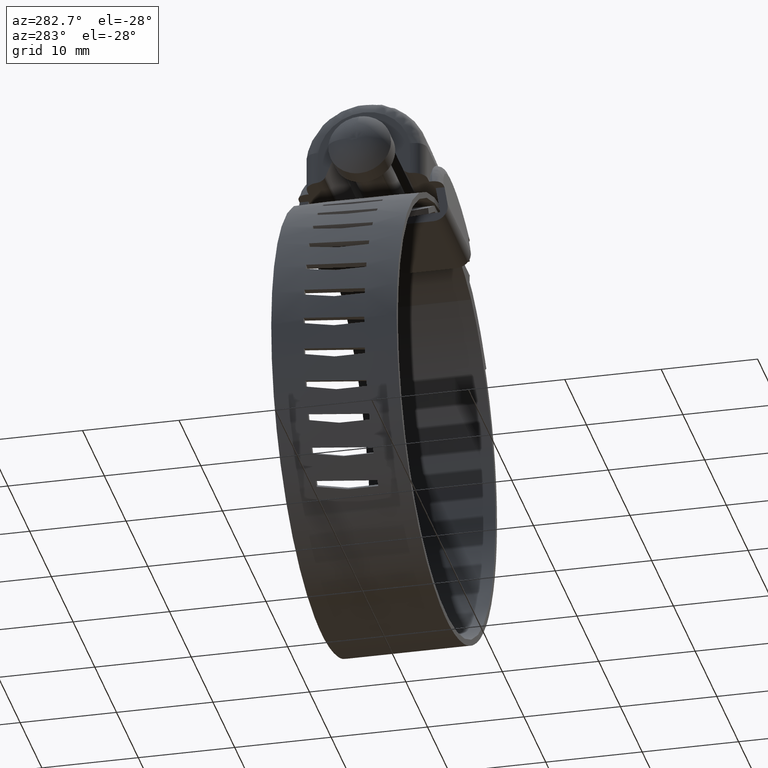
[diagram: clean part render]
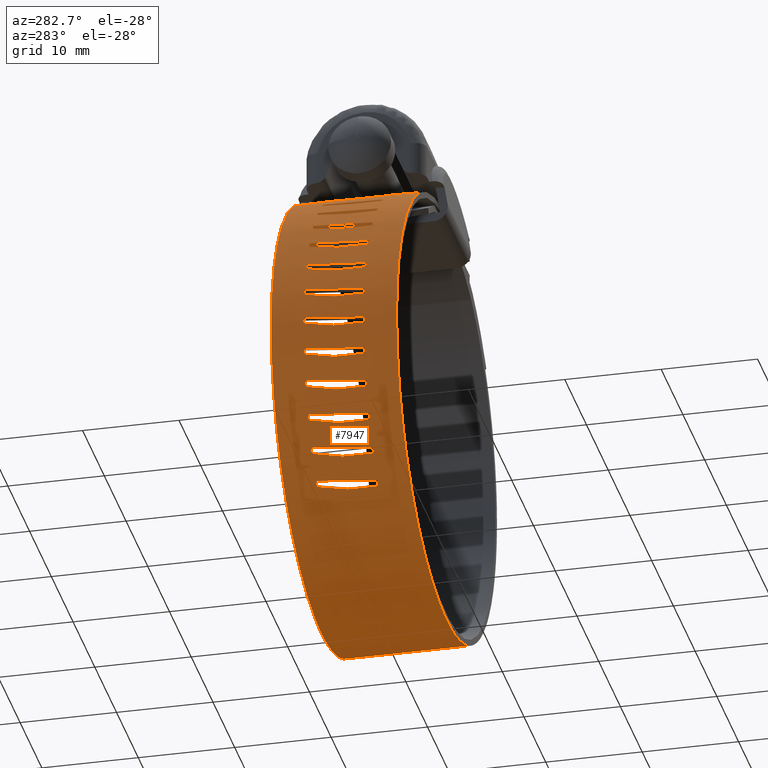
[diagram: same view with one face highlighted and labeled with its STEP entity id]
A machine part, auxiliary view. The second image highlights one B-rep face of the part: STEP entity #7947.
In plain terms, the highlighted face is a freeform B-spline surface patch.
Its self-contained STEP definition (entity closure, byte-faithful):
#5185=CARTESIAN_POINT('',(-16.689497563704951,0.0,-26.455376748765250));
#5186=VERTEX_POINT('',#5185);
#5187=CARTESIAN_POINT('',(-16.689497563704951,-3.150000000000000,-26.455376748765200));
#5188=VERTEX_POINT('',#5187);
#5189=CARTESIAN_POINT('',(-16.689497563704951,0.0,-26.455376748765250));
#5190=CARTESIAN_POINT('',(-16.689497563704951,-3.150000000000000,-26.455376748765200));
#5191=QUASI_UNIFORM_CURVE('',1,(#5189,#5190),.UNSPECIFIED.,.F.,.U.);
#5192=EDGE_CURVE('',#5186,#5188,#5191,.T.);
#5221=CARTESIAN_POINT('',(-17.098682127423402,3.150000000000000,-26.016520297481598));
#5222=VERTEX_POINT('',#5221);
#5223=CARTESIAN_POINT('',(-17.098682127423402,3.150000000000000,-26.016520297481598));
#5224=CARTESIAN_POINT('',(-16.689497563704951,0.0,-26.455376748765250));
#5225=QUASI_UNIFORM_CURVE('',1,(#5223,#5224),.UNSPECIFIED.,.F.,.U.);
#5226=EDGE_CURVE('',#5222,#5186,#5225,.T.);
#5249=CARTESIAN_POINT('',(-17.496374511810000,3.150000000000000,-25.567133204018852));
#5250=VERTEX_POINT('',#5249);
#5251=CARTESIAN_POINT('',(-17.496374511810000,3.150000000000000,-25.567133204018852));
#5252=CARTESIAN_POINT('',(-17.098682127423402,3.150000000000000,-26.016520297481598));
#5253=QUASI_UNIFORM_CURVE('',1,(#5251,#5252),.UNSPECIFIED.,.F.,.U.);
#5254=EDGE_CURVE('',#5250,#5222,#5253,.T.);
#5277=CARTESIAN_POINT('',(-17.098682127423050,-3.150000000000000,-26.016520297481250));
#5278=VERTEX_POINT('',#5277);
#5279=CARTESIAN_POINT('',(-17.098682127423050,-3.150000000000000,-26.016520297481250));
#5280=CARTESIAN_POINT('',(-17.496374511810000,3.150000000000000,-25.567133204018852));
#5281=QUASI_UNIFORM_CURVE('',1,(#5279,#5280),.UNSPECIFIED.,.F.,.U.);
#5282=EDGE_CURVE('',#5278,#5250,#5281,.T.);
#5305=CARTESIAN_POINT('',(-16.689497563704951,-3.150000000000000,-26.455376748765200));
#5306=CARTESIAN_POINT('',(-17.098682127423050,-3.150000000000000,-26.016520297481250));
#5307=QUASI_UNIFORM_CURVE('',1,(#5305,#5306),.UNSPECIFIED.,.F.,.U.);
#5308=EDGE_CURVE('',#5188,#5278,#5307,.T.);
#5325=CARTESIAN_POINT('',(-18.866883001076751,0.0,-23.813081244747700));
#5326=VERTEX_POINT('',#5325);
#5327=CARTESIAN_POINT('',(-18.866883001076751,-3.150000000000000,-23.813081244747700));
#5328=VERTEX_POINT('',#5327);
#5329=CARTESIAN_POINT('',(-18.866883001076751,0.0,-23.813081244747700));
#5330=CARTESIAN_POINT('',(-18.866883001076751,-3.150000000000000,-23.813081244747700));
#5331=QUASI_UNIFORM_CURVE('',1,(#5329,#5330),.UNSPECIFIED.,.F.,.U.);
#5332=EDGE_CURVE('',#5326,#5328,#5331,.T.);
#5361=CARTESIAN_POINT('',(-19.206705912001901,3.150000000000000,-23.318563923282600));
#5362=VERTEX_POINT('',#5361);
#5363=CARTESIAN_POINT('',(-19.206705912001901,3.150000000000000,-23.318563923282600));
#5364=CARTESIAN_POINT('',(-18.866883001076751,0.0,-23.813081244747700));
#5365=QUASI_UNIFORM_CURVE('',1,(#5363,#5364),.UNSPECIFIED.,.F.,.U.);
#5366=EDGE_CURVE('',#5362,#5326,#5365,.T.);
#5389=CARTESIAN_POINT('',(-19.533606347245051,3.150000000000000,-22.815330281911251));
#5390=VERTEX_POINT('',#5389);
#5391=CARTESIAN_POINT('',(-19.533606347245051,3.150000000000000,-22.815330281911251));
#5392=CARTESIAN_POINT('',(-19.206705912001901,3.150000000000000,-23.318563923282600));
#5393=QUASI_UNIFORM_CURVE('',1,(#5391,#5392),.UNSPECIFIED.,.F.,.U.);
#5394=EDGE_CURVE('',#5390,#5362,#5393,.T.);
#5417=CARTESIAN_POINT('',(-19.206705912001901,-3.150000000000000,-23.318563923282600));
#5418=VERTEX_POINT('',#5417);
#5419=CARTESIAN_POINT('',(-19.206705912001901,-3.150000000000000,-23.318563923282600));
#5420=CARTESIAN_POINT('',(-19.533606347245051,3.150000000000000,-22.815330281911251));
#5421=QUASI_UNIFORM_CURVE('',1,(#5419,#5420),.UNSPECIFIED.,.F.,.U.);
#5422=EDGE_CURVE('',#5418,#5390,#5421,.T.);
#5445=CARTESIAN_POINT('',(-18.866883001076751,-3.150000000000000,-23.813081244747700));
#5446=CARTESIAN_POINT('',(-19.206705912001901,-3.150000000000000,-23.318563923282600));
#5447=QUASI_UNIFORM_CURVE('',1,(#5445,#5446),.UNSPECIFIED.,.F.,.U.);
#5448=EDGE_CURVE('',#5328,#5418,#5447,.T.);
#5465=CARTESIAN_POINT('',(-20.629795596811402,0.0,-20.877971016284398));
#5466=VERTEX_POINT('',#5465);
#5467=CARTESIAN_POINT('',(-20.629795596811451,-3.150000000000000,-20.877971016284452));
#5468=VERTEX_POINT('',#5467);
#5469=CARTESIAN_POINT('',(-20.629795596811402,0.0,-20.877971016284398));
#5470=CARTESIAN_POINT('',(-20.629795596811451,-3.150000000000000,-20.877971016284452));
#5471=QUASI_UNIFORM_CURVE('',1,(#5469,#5470),.UNSPECIFIED.,.F.,.U.);
#5472=EDGE_CURVE('',#5466,#5468,#5471,.T.);
#5501=CARTESIAN_POINT('',(-20.892791532371550,3.150000000000000,-20.338656516296201));
#5502=VERTEX_POINT('',#5501);
#5503=CARTESIAN_POINT('',(-20.892791532371550,3.150000000000000,-20.338656516296201));
#5504=CARTESIAN_POINT('',(-20.629795596811402,0.0,-20.877971016284398));
#5505=QUASI_UNIFORM_CURVE('',1,(#5503,#5504),.UNSPECIFIED.,.F.,.U.);
#5506=EDGE_CURVE('',#5502,#5466,#5505,.T.);
#5529=CARTESIAN_POINT('',(-21.141718580374750,3.150000000000000,-19.792631501171002));
#5530=VERTEX_POINT('',#5529);
#5531=CARTESIAN_POINT('',(-21.141718580374750,3.150000000000000,-19.792631501171002));
#5532=CARTESIAN_POINT('',(-20.892791532371550,3.150000000000000,-20.338656516296201));
#5533=QUASI_UNIFORM_CURVE('',1,(#5531,#5532),.UNSPECIFIED.,.F.,.U.);
#5534=EDGE_CURVE('',#5530,#5502,#5533,.T.);
#5557=CARTESIAN_POINT('',(-20.892791532371099,-3.150000000000000,-20.338656516295998));
#5558=VERTEX_POINT('',#5557);
#5559=CARTESIAN_POINT('',(-20.892791532371099,-3.150000000000000,-20.338656516295998));
#5560=CARTESIAN_POINT('',(-21.141718580374750,3.150000000000000,-19.792631501171002));
#5561=QUASI_UNIFORM_CURVE('',1,(#5559,#5560),.UNSPECIFIED.,.F.,.U.);
#5562=EDGE_CURVE('',#5558,#5530,#5561,.T.);
#5585=CARTESIAN_POINT('',(-20.629795596811451,-3.150000000000000,-20.877971016284452));
#5586=CARTESIAN_POINT('',(-20.892791532371099,-3.150000000000000,-20.338656516295998));
#5587=QUASI_UNIFORM_CURVE('',1,(#5585,#5586),.UNSPECIFIED.,.F.,.U.);
#5588=EDGE_CURVE('',#5468,#5558,#5587,.T.);
#5605=CARTESIAN_POINT('',(-21.939507205243800,0.0,-17.714525366969951));
#5606=VERTEX_POINT('',#5605);
#5607=CARTESIAN_POINT('',(-21.939507205244048,-3.150000000000000,-17.714525366969951));
#5608=VERTEX_POINT('',#5607);
#5609=CARTESIAN_POINT('',(-21.939507205243800,0.0,-17.714525366969951));
#5610=CARTESIAN_POINT('',(-21.939507205244048,-3.150000000000000,-17.714525366969951));
#5611=QUASI_UNIFORM_CURVE('',1,(#5609,#5610),.UNSPECIFIED.,.F.,.U.);
#5612=EDGE_CURVE('',#5606,#5608,#5611,.T.);
#5641=CARTESIAN_POINT('',(-22.119898598855649,3.150000000000000,-17.142261496775799));
#5642=VERTEX_POINT('',#5641);
#5643=CARTESIAN_POINT('',(-22.119898598855649,3.150000000000000,-17.142261496775799));
#5644=CARTESIAN_POINT('',(-21.939507205243800,0.0,-17.714525366969951));
#5645=QUASI_UNIFORM_CURVE('',1,(#5643,#5644),.UNSPECIFIED.,.F.,.U.);
#5646=EDGE_CURVE('',#5642,#5606,#5645,.T.);
#5669=CARTESIAN_POINT('',(-22.285383762202951,3.150000000000000,-16.565440334645000));
#5670=VERTEX_POINT('',#5669);
#5671=CARTESIAN_POINT('',(-22.285383762202951,3.150000000000000,-16.565440334645000));
#5672=CARTESIAN_POINT('',(-22.119898598855649,3.150000000000000,-17.142261496775799));
#5673=QUASI_UNIFORM_CURVE('',1,(#5671,#5672),.UNSPECIFIED.,.F.,.U.);
#5674=EDGE_CURVE('',#5670,#5642,#5673,.T.);
#5697=CARTESIAN_POINT('',(-22.119898598855649,-3.150000000000000,-17.142261496775799));
#5698=VERTEX_POINT('',#5697);
#5699=CARTESIAN_POINT('',(-22.119898598855649,-3.150000000000000,-17.142261496775799));
#5700=CARTESIAN_POINT('',(-22.285383762202951,3.150000000000000,-16.565440334645000));
#5701=QUASI_UNIFORM_CURVE('',1,(#5699,#5700),.UNSPECIFIED.,.F.,.U.);
#5702=EDGE_CURVE('',#5698,#5670,#5701,.T.);
#5725=CARTESIAN_POINT('',(-21.939507205244048,-3.150000000000000,-17.714525366969951));
#5726=CARTESIAN_POINT('',(-22.119898598855649,-3.150000000000000,-17.142261496775799));
#5727=QUASI_UNIFORM_CURVE('',1,(#5725,#5726),.UNSPECIFIED.,.F.,.U.);
#5728=EDGE_CURVE('',#5608,#5698,#5727,.T.);
#5745=CARTESIAN_POINT('',(-22.767245723847051,0.0,-14.392239735322541));
#5746=VERTEX_POINT('',#5745);
#5747=CARTESIAN_POINT('',(-22.767245723847051,-3.150000000000000,-14.392239735322519));
#5748=VERTEX_POINT('',#5747);
#5749=CARTESIAN_POINT('',(-22.767245723847051,0.0,-14.392239735322541));
#5750=CARTESIAN_POINT('',(-22.767245723847051,-3.150000000000000,-14.392239735322519));
#5751=QUASI_UNIFORM_CURVE('',1,(#5749,#5750),.UNSPECIFIED.,.F.,.U.);
#5752=EDGE_CURVE('',#5746,#5748,#5751,.T.);
#5781=CARTESIAN_POINT('',(-22.861069688078551,3.150000000000000,-13.799598144009041));
#5782=VERTEX_POINT('',#5781);
#5783=CARTESIAN_POINT('',(-22.861069688078551,3.150000000000000,-13.799598144009041));
#5784=CARTESIAN_POINT('',(-22.767245723847051,0.0,-14.392239735322541));
#5785=QUASI_UNIFORM_CURVE('',1,(#5783,#5784),.UNSPECIFIED.,.F.,.U.);
#5786=EDGE_CURVE('',#5782,#5746,#5785,.T.);
#5809=CARTESIAN_POINT('',(-22.939477543478851,3.150000000000000,-13.204652599793800));
#5810=VERTEX_POINT('',#5809);
#5811=CARTESIAN_POINT('',(-22.939477543478851,3.150000000000000,-13.204652599793800));
#5812=CARTESIAN_POINT('',(-22.861069688078551,3.150000000000000,-13.799598144009041));
#5813=QUASI_UNIFORM_CURVE('',1,(#5811,#5812),.UNSPECIFIED.,.F.,.U.);
#5814=EDGE_CURVE('',#5810,#5782,#5813,.T.);
#5837=CARTESIAN_POINT('',(-22.861069688078349,-3.150000000000000,-13.799598144009019));
#5838=VERTEX_POINT('',#5837);
#5839=CARTESIAN_POINT('',(-22.861069688078349,-3.150000000000000,-13.799598144009019));
#5840=CARTESIAN_POINT('',(-22.939477543478851,3.150000000000000,-13.204652599793800));
#5841=QUASI_UNIFORM_CURVE('',1,(#5839,#5840),.UNSPECIFIED.,.F.,.U.);
#5842=EDGE_CURVE('',#5838,#5810,#5841,.T.);
#5865=CARTESIAN_POINT('',(-22.767245723847051,-3.150000000000000,-14.392239735322519));
#5866=CARTESIAN_POINT('',(-22.861069688078349,-3.150000000000000,-13.799598144009019));
#5867=QUASI_UNIFORM_CURVE('',1,(#5865,#5866),.UNSPECIFIED.,.F.,.U.);
#5868=EDGE_CURVE('',#5748,#5838,#5867,.T.);
#5885=CARTESIAN_POINT('',(-9.115066457708871,0.0,10.741748576214119));
#5886=VERTEX_POINT('',#5885);
#5887=CARTESIAN_POINT('',(-9.115066457708881,-3.150000000000000,10.741748576214119));
#5888=VERTEX_POINT('',#5887);
#5889=CARTESIAN_POINT('',(-9.115066457708871,0.0,10.741748576214119));
#5890=CARTESIAN_POINT('',(-9.115066457708881,-3.150000000000000,10.741748576214119));
#5891=QUASI_UNIFORM_CURVE('',1,(#5889,#5890),.UNSPECIFIED.,.F.,.U.);
#5892=EDGE_CURVE('',#5886,#5888,#5891,.T.);
#5921=CARTESIAN_POINT('',(-8.560702370207508,3.150000000000000,10.971329608765680));
#5922=VERTEX_POINT('',#5921);
#5923=CARTESIAN_POINT('',(-8.560702370207508,3.150000000000000,10.971329608765680));
#5924=CARTESIAN_POINT('',(-9.115066457708871,0.0,10.741748576214119));
#5925=QUASI_UNIFORM_CURVE('',1,(#5923,#5924),.UNSPECIFIED.,.F.,.U.);
#5926=EDGE_CURVE('',#5922,#5886,#5925,.T.);
#5949=CARTESIAN_POINT('',(-8.000499169070960,3.150000000000000,11.186458327923519));
#5950=VERTEX_POINT('',#5949);
#5951=CARTESIAN_POINT('',(-8.000499169070960,3.150000000000000,11.186458327923519));
#5952=CARTESIAN_POINT('',(-8.560702370207508,3.150000000000000,10.971329608765680));
#5953=QUASI_UNIFORM_CURVE('',1,(#5951,#5952),.UNSPECIFIED.,.F.,.U.);
#5954=EDGE_CURVE('',#5950,#5922,#5953,.T.);
#5977=CARTESIAN_POINT('',(-8.560702370207560,-3.150000000000000,10.971329608765799));
#5978=VERTEX_POINT('',#5977);
#5979=CARTESIAN_POINT('',(-8.560702370207560,-3.150000000000000,10.971329608765799));
#5980=CARTESIAN_POINT('',(-8.000499169070960,3.150000000000000,11.186458327923519));
#5981=QUASI_UNIFORM_CURVE('',1,(#5979,#5980),.UNSPECIFIED.,.F.,.U.);
#5982=EDGE_CURVE('',#5978,#5950,#5981,.T.);
#6005=CARTESIAN_POINT('',(-9.115066457708881,-3.150000000000000,10.741748576214119));
#6006=CARTESIAN_POINT('',(-8.560702370207560,-3.150000000000000,10.971329608765799));
#6007=QUASI_UNIFORM_CURVE('',1,(#6005,#6006),.UNSPECIFIED.,.F.,.U.);
#6008=EDGE_CURVE('',#5888,#5978,#6007,.T.);
#6025=CARTESIAN_POINT('',(-12.152325353239259,0.0,9.161308360656651));
#6026=VERTEX_POINT('',#6025);
#6027=CARTESIAN_POINT('',(-12.152325353239300,-3.150000000000000,9.161308360656651));
#6028=VERTEX_POINT('',#6027);
#6029=CARTESIAN_POINT('',(-12.152325353239259,0.0,9.161308360656651));
#6030=CARTESIAN_POINT('',(-12.152325353239300,-3.150000000000000,9.161308360656651));
#6031=QUASI_UNIFORM_CURVE('',1,(#6029,#6030),.UNSPECIFIED.,.F.,.U.);
#6032=EDGE_CURVE('',#6026,#6028,#6031,.T.);
#6061=CARTESIAN_POINT('',(-11.637984713850299,3.150000000000000,9.470307873102430));
#6062=VERTEX_POINT('',#6061);
#6063=CARTESIAN_POINT('',(-11.637984713850299,3.150000000000000,9.470307873102430));
#6064=CARTESIAN_POINT('',(-12.152325353239259,0.0,9.161308360656651));
#6065=QUASI_UNIFORM_CURVE('',1,(#6063,#6064),.UNSPECIFIED.,.F.,.U.);
#6066=EDGE_CURVE('',#6062,#6026,#6065,.T.);
#6089=CARTESIAN_POINT('',(-11.115732910515900,3.150000000000000,9.765876894286841));
#6090=VERTEX_POINT('',#6089);
#6091=CARTESIAN_POINT('',(-11.115732910515900,3.150000000000000,9.765876894286841));
#6092=CARTESIAN_POINT('',(-11.637984713850299,3.150000000000000,9.470307873102430));
#6093=QUASI_UNIFORM_CURVE('',1,(#6091,#6092),.UNSPECIFIED.,.F.,.U.);
#6094=EDGE_CURVE('',#6090,#6062,#6093,.T.);
#6117=CARTESIAN_POINT('',(-11.637984713850081,-3.150000000000000,9.470307873101989));
#6118=VERTEX_POINT('',#6117);
#6119=CARTESIAN_POINT('',(-11.637984713850081,-3.150000000000000,9.470307873101989));
#6120=CARTESIAN_POINT('',(-11.115732910515900,3.150000000000000,9.765876894286841));
#6121=QUASI_UNIFORM_CURVE('',1,(#6119,#6120),.UNSPECIFIED.,.F.,.U.);
#6122=EDGE_CURVE('',#6118,#6090,#6121,.T.);
#6145=CARTESIAN_POINT('',(-12.152325353239300,-3.150000000000000,9.161308360656651));
#6146=CARTESIAN_POINT('',(-11.637984713850081,-3.150000000000000,9.470307873101989));
#6147=QUASI_UNIFORM_CURVE('',1,(#6145,#6146),.UNSPECIFIED.,.F.,.U.);
#6148=EDGE_CURVE('',#6028,#6118,#6147,.T.);
#6165=CARTESIAN_POINT('',(-14.922618644468800,0.0,7.149292467578670));
#6166=VERTEX_POINT('',#6165);
#6167=CARTESIAN_POINT('',(-14.922618644468860,-3.150000000000000,7.149292467578779));
#6168=VERTEX_POINT('',#6167);
#6169=CARTESIAN_POINT('',(-14.922618644468800,0.0,7.149292467578670));
#6170=CARTESIAN_POINT('',(-14.922618644468860,-3.150000000000000,7.149292467578779));
#6171=QUASI_UNIFORM_CURVE('',1,(#6169,#6170),.UNSPECIFIED.,.F.,.U.);
#6172=EDGE_CURVE('',#6166,#6168,#6171,.T.);
#6201=CARTESIAN_POINT('',(-14.459600628915160,3.150000000000000,7.530922274186500));
#6202=VERTEX_POINT('',#6201);
#6203=CARTESIAN_POINT('',(-14.459600628915160,3.150000000000000,7.530922274186500));
#6204=CARTESIAN_POINT('',(-14.922618644468800,0.0,7.149292467578670));
#6205=QUASI_UNIFORM_CURVE('',1,(#6203,#6204),.UNSPECIFIED.,.F.,.U.);
#6206=EDGE_CURVE('',#6202,#6166,#6205,.T.);
#6229=CARTESIAN_POINT('',(-13.986773193717680,3.150000000000000,7.900438456368720));
#6230=VERTEX_POINT('',#6229);
#6231=CARTESIAN_POINT('',(-13.986773193717680,3.150000000000000,7.900438456368720));
#6232=CARTESIAN_POINT('',(-14.459600628915160,3.150000000000000,7.530922274186500));
#6233=QUASI_UNIFORM_CURVE('',1,(#6231,#6232),.UNSPECIFIED.,.F.,.U.);
#6234=EDGE_CURVE('',#6230,#6202,#6233,.T.);
#6257=CARTESIAN_POINT('',(-14.459600628915499,-3.150000000000000,7.530922274186840));
#6258=VERTEX_POINT('',#6257);
#6259=CARTESIAN_POINT('',(-14.459600628915499,-3.150000000000000,7.530922274186840));
#6260=CARTESIAN_POINT('',(-13.986773193717680,3.150000000000000,7.900438456368720));
#6261=QUASI_UNIFORM_CURVE('',1,(#6259,#6260),.UNSPECIFIED.,.F.,.U.);
#6262=EDGE_CURVE('',#6258,#6230,#6261,.T.);
#6285=CARTESIAN_POINT('',(-14.922618644468860,-3.150000000000000,7.149292467578779));
#6286=CARTESIAN_POINT('',(-14.459600628915499,-3.150000000000000,7.530922274186840));
#6287=QUASI_UNIFORM_CURVE('',1,(#6285,#6286),.UNSPECIFIED.,.F.,.U.);
#6288=EDGE_CURVE('',#6168,#6258,#6287,.T.);
#6305=CARTESIAN_POINT('',(-17.365087771320599,0.0,4.749901411955340));
#6306=VERTEX_POINT('',#6305);
#6307=CARTESIAN_POINT('',(-17.365087771320599,-3.150000000000000,4.749901411955300));
#6308=VERTEX_POINT('',#6307);
#6309=CARTESIAN_POINT('',(-17.365087771320599,0.0,4.749901411955340));
#6310=CARTESIAN_POINT('',(-17.365087771320599,-3.150000000000000,4.749901411955300));
#6311=QUASI_UNIFORM_CURVE('',1,(#6309,#6310),.UNSPECIFIED.,.F.,.U.);
#6312=EDGE_CURVE('',#6306,#6308,#6311,.T.);
#6341=CARTESIAN_POINT('',(-16.963564085900249,3.150000000000000,5.195777764843810));
#6342=VERTEX_POINT('',#6341);
#6343=CARTESIAN_POINT('',(-16.963564085900249,3.150000000000000,5.195777764843810));
#6344=CARTESIAN_POINT('',(-17.365087771320599,0.0,4.749901411955340));
#6345=QUASI_UNIFORM_CURVE('',1,(#6343,#6344),.UNSPECIFIED.,.F.,.U.);
#6346=EDGE_CURVE('',#6342,#6306,#6345,.T.);
#6369=CARTESIAN_POINT('',(-16.550548221148102,3.150000000000000,5.631123475553221));
#6370=VERTEX_POINT('',#6369);
#6371=CARTESIAN_POINT('',(-16.550548221148102,3.150000000000000,5.631123475553221));
#6372=CARTESIAN_POINT('',(-16.963564085900249,3.150000000000000,5.195777764843810));
#6373=QUASI_UNIFORM_CURVE('',1,(#6371,#6372),.UNSPECIFIED.,.F.,.U.);
#6374=EDGE_CURVE('',#6370,#6342,#6373,.T.);
#6397=CARTESIAN_POINT('',(-16.963564085899950,-3.150000000000000,5.195777764843480));
#6398=VERTEX_POINT('',#6397);
#6399=CARTESIAN_POINT('',(-16.963564085899950,-3.150000000000000,5.195777764843480));
#6400=CARTESIAN_POINT('',(-16.550548221148102,3.150000000000000,5.631123475553221));
#6401=QUASI_UNIFORM_CURVE('',1,(#6399,#6400),.UNSPECIFIED.,.F.,.U.);
#6402=EDGE_CURVE('',#6398,#6370,#6401,.T.);
#6425=CARTESIAN_POINT('',(-17.365087771320599,-3.150000000000000,4.749901411955300));
#6426=CARTESIAN_POINT('',(-16.963564085899950,-3.150000000000000,5.195777764843480));
#6427=QUASI_UNIFORM_CURVE('',1,(#6425,#6426),.UNSPECIFIED.,.F.,.U.);
#6428=EDGE_CURVE('',#6308,#6398,#6427,.T.);
#6445=CARTESIAN_POINT('',(-19.426075904547499,0.0,2.015845672192810));
#6446=VERTEX_POINT('',#6445);
#6447=CARTESIAN_POINT('',(-19.426075904547499,-3.150000000000000,2.015845672192820));
#6448=VERTEX_POINT('',#6447);
#6449=CARTESIAN_POINT('',(-19.426075904547499,0.0,2.015845672192810));
#6450=CARTESIAN_POINT('',(-19.426075904547499,-3.150000000000000,2.015845672192820));
#6451=QUASI_UNIFORM_CURVE('',1,(#6449,#6450),.UNSPECIFIED.,.F.,.U.);
#6452=EDGE_CURVE('',#6446,#6448,#6451,.T.);
#6481=CARTESIAN_POINT('',(-19.094867331307849,3.150000000000000,2.516173437793755));
#6482=VERTEX_POINT('',#6481);
#6483=CARTESIAN_POINT('',(-19.094867331307849,3.150000000000000,2.516173437793755));
#6484=CARTESIAN_POINT('',(-19.426075904547499,0.0,2.015845672192810));
#6485=QUASI_UNIFORM_CURVE('',1,(#6483,#6484),.UNSPECIFIED.,.F.,.U.);
#6486=EDGE_CURVE('',#6482,#6446,#6485,.T.);
#6509=CARTESIAN_POINT('',(-18.750736282386050,3.150000000000000,3.007784883488420));
#6510=VERTEX_POINT('',#6509);
#6511=CARTESIAN_POINT('',(-18.750736282386050,3.150000000000000,3.007784883488420));
#6512=CARTESIAN_POINT('',(-19.094867331307849,3.150000000000000,2.516173437793755));
#6513=QUASI_UNIFORM_CURVE('',1,(#6511,#6512),.UNSPECIFIED.,.F.,.U.);
#6514=EDGE_CURVE('',#6510,#6482,#6513,.T.);
#6537=CARTESIAN_POINT('',(-19.094867331307849,-3.150000000000000,2.516173437793755));
#6538=VERTEX_POINT('',#6537);
#6539=CARTESIAN_POINT('',(-19.094867331307849,-3.150000000000000,2.516173437793755));
#6540=CARTESIAN_POINT('',(-18.750736282386050,3.150000000000000,3.007784883488420));
#6541=QUASI_UNIFORM_CURVE('',1,(#6539,#6540),.UNSPECIFIED.,.F.,.U.);
#6542=EDGE_CURVE('',#6538,#6510,#6541,.T.);
#6565=CARTESIAN_POINT('',(-19.426075904547499,-3.150000000000000,2.015845672192820));
#6566=CARTESIAN_POINT('',(-19.094867331307849,-3.150000000000000,2.516173437793755));
#6567=QUASI_UNIFORM_CURVE('',1,(#6565,#6566),.UNSPECIFIED.,.F.,.U.);
#6568=EDGE_CURVE('',#6448,#6538,#6567,.T.);
#6585=CARTESIAN_POINT('',(-21.060306693619701,0.0,-0.992812268065271));
#6586=VERTEX_POINT('',#6585);
#6587=CARTESIAN_POINT('',(-21.060306693619701,-3.150000000000000,-0.992812268065246));
#6588=VERTEX_POINT('',#6587);
#6589=CARTESIAN_POINT('',(-21.060306693619701,0.0,-0.992812268065271));
#6590=CARTESIAN_POINT('',(-21.060306693619701,-3.150000000000000,-0.992812268065246));
#6591=QUASI_UNIFORM_CURVE('',1,(#6589,#6590),.UNSPECIFIED.,.F.,.U.);
#6592=EDGE_CURVE('',#6586,#6588,#6591,.T.);
#6621=CARTESIAN_POINT('',(-20.806689313009901,3.150000000000000,-0.449024426833699));
#6622=VERTEX_POINT('',#6621);
#6623=CARTESIAN_POINT('',(-20.806689313009901,3.150000000000000,-0.449024426833699));
#6624=CARTESIAN_POINT('',(-21.060306693619701,0.0,-0.992812268065271));
#6625=QUASI_UNIFORM_CURVE('',1,(#6623,#6624),.UNSPECIFIED.,.F.,.U.);
#6626=EDGE_CURVE('',#6622,#6586,#6625,.T.);
#6649=CARTESIAN_POINT('',(-20.539003044843099,3.150000000000000,0.088052899261023));
#6650=VERTEX_POINT('',#6649);
#6651=CARTESIAN_POINT('',(-20.539003044843099,3.150000000000000,0.088052899261023));
#6652=CARTESIAN_POINT('',(-20.806689313009901,3.150000000000000,-0.449024426833699));
#6653=QUASI_UNIFORM_CURVE('',1,(#6651,#6652),.UNSPECIFIED.,.F.,.U.);
#6654=EDGE_CURVE('',#6650,#6622,#6653,.T.);
#6677=CARTESIAN_POINT('',(-20.806689313009549,-3.150000000000000,-0.449024426833866));
#6678=VERTEX_POINT('',#6677);
#6679=CARTESIAN_POINT('',(-20.806689313009549,-3.150000000000000,-0.449024426833866));
#6680=CARTESIAN_POINT('',(-20.539003044843099,3.150000000000000,0.088052899261023));
#6681=QUASI_UNIFORM_CURVE('',1,(#6679,#6680),.UNSPECIFIED.,.F.,.U.);
#6682=EDGE_CURVE('',#6678,#6650,#6681,.T.);
#6705=CARTESIAN_POINT('',(-21.060306693619701,-3.150000000000000,-0.992812268065246));
#6706=CARTESIAN_POINT('',(-20.806689313009549,-3.150000000000000,-0.449024426833866));
#6707=QUASI_UNIFORM_CURVE('',1,(#6705,#6706),.UNSPECIFIED.,.F.,.U.);
#6708=EDGE_CURVE('',#6588,#6678,#6707,.T.);
#6725=CARTESIAN_POINT('',(-22.231878909966550,0.0,-4.209977388992935));
#6726=VERTEX_POINT('',#6725);
#6727=CARTESIAN_POINT('',(-22.231878909966799,-3.150000000000000,-4.209977388992925));
#6728=VERTEX_POINT('',#6727);
#6729=CARTESIAN_POINT('',(-22.231878909966550,0.0,-4.209977388992935));
#6730=CARTESIAN_POINT('',(-22.231878909966799,-3.150000000000000,-4.209977388992925));
#6731=QUASI_UNIFORM_CURVE('',1,(#6729,#6730),.UNSPECIFIED.,.F.,.U.);
#6732=EDGE_CURVE('',#6726,#6728,#6731,.T.);
#6761=CARTESIAN_POINT('',(-22.061424257911149,3.150000000000000,-3.634675552031450));
#6762=VERTEX_POINT('',#6761);
#6763=CARTESIAN_POINT('',(-22.061424257911149,3.150000000000000,-3.634675552031450));
#6764=CARTESIAN_POINT('',(-22.231878909966550,0.0,-4.209977388992935));
#6765=QUASI_UNIFORM_CURVE('',1,(#6763,#6764),.UNSPECIFIED.,.F.,.U.);
#6766=EDGE_CURVE('',#6762,#6726,#6765,.T.);
#6789=CARTESIAN_POINT('',(-21.876063375591102,3.150000000000000,-3.063931007006570));
#6790=VERTEX_POINT('',#6789);
#6791=CARTESIAN_POINT('',(-21.876063375591102,3.150000000000000,-3.063931007006570));
#6792=CARTESIAN_POINT('',(-22.061424257911149,3.150000000000000,-3.634675552031450));
#6793=QUASI_UNIFORM_CURVE('',1,(#6791,#6792),.UNSPECIFIED.,.F.,.U.);
#6794=EDGE_CURVE('',#6790,#6762,#6793,.T.);
#6817=CARTESIAN_POINT('',(-22.061424257911149,-3.150000000000000,-3.634675552031450));
#6818=VERTEX_POINT('',#6817);
#6819=CARTESIAN_POINT('',(-22.061424257911149,-3.150000000000000,-3.634675552031450));
#6820=CARTESIAN_POINT('',(-21.876063375591102,3.150000000000000,-3.063931007006570));
#6821=QUASI_UNIFORM_CURVE('',1,(#6819,#6820),.UNSPECIFIED.,.F.,.U.);
#6822=EDGE_CURVE('',#6818,#6790,#6821,.T.);
#6845=CARTESIAN_POINT('',(-22.231878909966799,-3.150000000000000,-4.209977388992925));
#6846=CARTESIAN_POINT('',(-22.061424257911149,-3.150000000000000,-3.634675552031450));
#6847=QUASI_UNIFORM_CURVE('',1,(#6845,#6846),.UNSPECIFIED.,.F.,.U.);
#6848=EDGE_CURVE('',#6728,#6818,#6847,.T.);
#6865=CARTESIAN_POINT('',(-22.915055134976701,0.0,-7.564974128039210));
#6866=VERTEX_POINT('',#6865);
#6867=CARTESIAN_POINT('',(-22.915055134976701,-3.150000000000000,-7.564974128039190));
#6868=VERTEX_POINT('',#6867);
#6869=CARTESIAN_POINT('',(-22.915055134976701,0.0,-7.564974128039210));
#6870=CARTESIAN_POINT('',(-22.915055134976701,-3.150000000000000,-7.564974128039190));
#6871=QUASI_UNIFORM_CURVE('',1,(#6869,#6870),.UNSPECIFIED.,.F.,.U.);
#6872=EDGE_CURVE('',#6866,#6868,#6871,.T.);
#6901=CARTESIAN_POINT('',(-22.831507805852649,3.150000000000000,-6.970796683318401));
#6902=VERTEX_POINT('',#6901);
#6903=CARTESIAN_POINT('',(-22.831507805852649,3.150000000000000,-6.970796683318401));
#6904=CARTESIAN_POINT('',(-22.915055134976701,0.0,-7.564974128039210));
#6905=QUASI_UNIFORM_CURVE('',1,(#6903,#6904),.UNSPECIFIED.,.F.,.U.);
#6906=EDGE_CURVE('',#6902,#6866,#6905,.T.);
#6929=CARTESIAN_POINT('',(-22.732544367897400,3.150000000000000,-6.378923191499360));
#6930=VERTEX_POINT('',#6929);
#6931=CARTESIAN_POINT('',(-22.732544367897400,3.150000000000000,-6.378923191499360));
#6932=CARTESIAN_POINT('',(-22.831507805852649,3.150000000000000,-6.970796683318401));
#6933=QUASI_UNIFORM_CURVE('',1,(#6931,#6932),.UNSPECIFIED.,.F.,.U.);
#6934=EDGE_CURVE('',#6930,#6902,#6933,.T.);
#6957=CARTESIAN_POINT('',(-22.831507805852400,-3.150000000000000,-6.970796683318430));
#6958=VERTEX_POINT('',#6957);
#6959=CARTESIAN_POINT('',(-22.831507805852400,-3.150000000000000,-6.970796683318430));
#6960=CARTESIAN_POINT('',(-22.732544367897400,3.150000000000000,-6.378923191499360));
#6961=QUASI_UNIFORM_CURVE('',1,(#6959,#6960),.UNSPECIFIED.,.F.,.U.);
#6962=EDGE_CURVE('',#6958,#6930,#6961,.T.);
#6985=CARTESIAN_POINT('',(-22.915055134976701,-3.150000000000000,-7.564974128039190));
#6986=CARTESIAN_POINT('',(-22.831507805852400,-3.150000000000000,-6.970796683318430));
#6987=QUASI_UNIFORM_CURVE('',1,(#6985,#6986),.UNSPECIFIED.,.F.,.U.);
#6988=EDGE_CURVE('',#6868,#6958,#6987,.T.);
#7005=CARTESIAN_POINT('',(-23.094827166643199,0.0,-10.984098999999899));
#7006=VERTEX_POINT('',#7005);
#7007=CARTESIAN_POINT('',(-23.094827166643249,-3.150000000000000,-10.984098999999899));
#7008=VERTEX_POINT('',#7007);
#7009=CARTESIAN_POINT('',(-23.094827166643199,0.0,-10.984098999999899));
#7010=CARTESIAN_POINT('',(-23.094827166643249,-3.150000000000000,-10.984098999999899));
#7011=QUASI_UNIFORM_CURVE('',1,(#7009,#7010),.UNSPECIFIED.,.F.,.U.);
#7012=EDGE_CURVE('',#7006,#7008,#7011,.T.);
#7041=CARTESIAN_POINT('',(-23.100022551008500,3.150000000000000,-10.384098999999919));
#7042=VERTEX_POINT('',#7041);
#7043=CARTESIAN_POINT('',(-23.100022551008500,3.150000000000000,-10.384098999999919));
#7044=CARTESIAN_POINT('',(-23.094827166643199,0.0,-10.984098999999899));
#7045=QUASI_UNIFORM_CURVE('',1,(#7043,#7044),.UNSPECIFIED.,.F.,.U.);
#7046=EDGE_CURVE('',#7042,#7006,#7045,.T.);
#7069=CARTESIAN_POINT('',(-23.089630613267101,3.150000000000000,-9.784098999999999));
#7070=VERTEX_POINT('',#7069);
#7071=CARTESIAN_POINT('',(-23.089630613267101,3.150000000000000,-9.784098999999999));
#7072=CARTESIAN_POINT('',(-23.100022551008500,3.150000000000000,-10.384098999999919));
#7073=QUASI_UNIFORM_CURVE('',1,(#7071,#7072),.UNSPECIFIED.,.F.,.U.);
#7074=EDGE_CURVE('',#7070,#7042,#7073,.T.);
#7097=CARTESIAN_POINT('',(-23.100022551009051,-3.150000000000000,-10.384098999999919));
#7098=VERTEX_POINT('',#7097);
#7099=CARTESIAN_POINT('',(-23.100022551009051,-3.150000000000000,-10.384098999999919));
#7100=CARTESIAN_POINT('',(-23.089630613267101,3.150000000000000,-9.784098999999999));
#7101=QUASI_UNIFORM_CURVE('',1,(#7099,#7100),.UNSPECIFIED.,.F.,.U.);
#7102=EDGE_CURVE('',#7098,#7070,#7101,.T.);
#7125=CARTESIAN_POINT('',(-23.094827166643249,-3.150000000000000,-10.984098999999899));
#7126=CARTESIAN_POINT('',(-23.100022551009051,-3.150000000000000,-10.384098999999919));
#7127=QUASI_UNIFORM_CURVE('',1,(#7125,#7126),.UNSPECIFIED.,.F.,.U.);
#7128=EDGE_CURVE('',#7008,#7098,#7127,.T.);
#7660=CARTESIAN_POINT('',(11.530119279132240,-6.499999999999840,9.532828618046372));
#7661=VERTEX_POINT('',#7660);
#7670=CARTESIAN_POINT('',(11.530119279132240,6.500000000000170,9.532828618046372));
#7671=VERTEX_POINT('',#7670);
#7672=CARTESIAN_POINT('',(11.530119279132240,6.500000000000170,9.532828618046372));
#7673=CARTESIAN_POINT('',(11.530119279132240,-6.499999999999840,9.532828618046372));
#7674=QUASI_UNIFORM_CURVE('',1,(#7672,#7673),.UNSPECIFIED.,.F.,.U.);
#7675=EDGE_CURVE('',#7671,#7661,#7674,.T.);
#7689=CARTESIAN_POINT('',(10.936785626554800,6.825000000000170,9.863081689616646));
#7690=CARTESIAN_POINT('',(10.936785626554800,-6.833124999999839,9.863081689616646));
#7691=CARTESIAN_POINT('',(28.161945564306787,6.825000000000170,0.604409223094034));
#7692=CARTESIAN_POINT('',(28.161945564306787,-6.833124999999839,0.604409223094034));
#7693=CARTESIAN_POINT('',(21.873221629519549,6.825000000000170,-17.912639731734441));
#7694=CARTESIAN_POINT('',(21.873221629519549,-6.833124999999839,-17.912639731734441));
#7695=CARTESIAN_POINT('',(15.584497694732313,6.825000000000170,-36.429688686562912));
#7696=CARTESIAN_POINT('',(15.584497694732313,-6.833124999999839,-36.429688686562912));
#7697=CARTESIAN_POINT('',(-3.716539901730418,6.825000000000170,-33.283405415239102));
#7698=CARTESIAN_POINT('',(-3.716539901730418,-6.833124999999839,-33.283405415239102));
#7699=CARTESIAN_POINT('',(-23.017577498193152,6.825000000000170,-30.137122143915285));
#7700=CARTESIAN_POINT('',(-23.017577498193152,-6.833124999999839,-30.137122143915285));
#7701=CARTESIAN_POINT('',(-23.100033655252108,6.825000000000170,-10.581500146503821));
#7702=CARTESIAN_POINT('',(-23.100033655252108,-6.833124999999839,-10.581500146503821));
#7703=CARTESIAN_POINT('',(-23.182489812311079,6.825000000000170,8.974121850907643));
#7704=CARTESIAN_POINT('',(-23.182489812311079,-6.833124999999839,8.974121850907643));
#7705=CARTESIAN_POINT('',(-3.908670598470451,6.825000000000170,12.283055763162150));
#7706=CARTESIAN_POINT('',(-3.908670598470451,-6.833124999999839,12.283055763162150));
#7714=(BOUNDED_SURFACE()B_SPLINE_SURFACE(1,2,((#7689,#7691,#7693,#7695,#7697,#7699,#7701,#7703,#7705),(#7690,#7692,#7694,#7696,#7698,#7700,#7702,#7704,#7706)),.UNSPECIFIED.,.F.,.F.,.U.)B_SPLINE_SURFACE_WITH_KNOTS((2,2),(3,2,2,2,3),(0.0,13.658125000000011),(0.0,33.859672185425381,67.719344370850763,101.579016556276100,135.438688741701500),.UNSPECIFIED.)GEOMETRIC_REPRESENTATION_ITEM()RATIONAL_B_SPLINE_SURFACE(((1.0,0.763232469782529,1.0,0.763232469782529,1.0,0.763232469782529,1.0,0.763232469782529,1.0),(1.0,0.763232469782529,1.0,0.763232469782529,1.0,0.763232469782529,1.0,0.763232469782529,1.0)))REPRESENTATION_ITEM('')SURFACE());
#7715=CARTESIAN_POINT('',(-3.155262802816941,-6.499999999999840,-33.367834676289327));
#7716=VERTEX_POINT('',#7715);
#7717=CARTESIAN_POINT('',(-3.155262802816941,-6.499999999999840,-33.367834676289327));
#7718=CARTESIAN_POINT('',(-1.759245071911273,-6.499999999999854,-33.560460656890733));
#7719=CARTESIAN_POINT('',(0.361263710715695,-6.499999999999806,-33.656815460123518));
#7720=CARTESIAN_POINT('',(3.294781582754527,-6.499999999999874,-33.386847717958773));
#7721=CARTESIAN_POINT('',(5.332326301137863,-6.499999999999800,-32.992171227446178));
#7722=CARTESIAN_POINT('',(7.564317121857537,-6.499999999999842,-32.350002751599952));
#7723=CARTESIAN_POINT('',(9.687910965450813,-6.499999999999891,-31.509091501191200));
#7724=CARTESIAN_POINT('',(12.068049752289200,-6.499999999999751,-30.239296404402999));
#7725=CARTESIAN_POINT('',(14.085909833159491,-6.499999999999814,-28.849544113123290));
#7726=CARTESIAN_POINT('',(15.941129340528180,-6.499999999999967,-27.252382410612238));
#7727=CARTESIAN_POINT('',(17.777073653342470,-6.499999999999440,-25.332866251625230));
#7728=CARTESIAN_POINT('',(19.383257412882891,-6.499999999999977,-23.160345589817361));
#7729=CARTESIAN_POINT('',(20.930629900246821,-6.499999999999668,-20.412269400786531));
#7730=CARTESIAN_POINT('',(21.989028131654020,-6.500000000000165,-17.790172188562082));
#7731=CARTESIAN_POINT('',(22.674466344574729,-6.499999999999727,-15.094911742499230));
#7732=CARTESIAN_POINT('',(23.070000767285979,-6.499999999999903,-12.469057782847139));
#7733=CARTESIAN_POINT('',(23.156479192951711,-6.499999999999796,-9.686027563272926));
#7734=CARTESIAN_POINT('',(22.860360401847579,-6.499999999999911,-6.835948681753953));
#7735=CARTESIAN_POINT('',(22.209481009553802,-6.499999999999612,-3.876989839399466));
#7736=CARTESIAN_POINT('',(21.150856854793769,-6.499999999999937,-0.986919240063807));
#7737=CARTESIAN_POINT('',(19.659641752438269,-6.499999999999822,1.748088866420719));
#7738=CARTESIAN_POINT('',(17.953122011074331,-6.499999999999829,4.150832370738392));
#7739=CARTESIAN_POINT('',(15.954752127349890,-6.499999999999901,6.321682562593418));
#7740=CARTESIAN_POINT('',(13.711372370465289,-6.499999999999758,8.171127112763230));
#7741=CARTESIAN_POINT('',(12.212520447768370,-6.499999999999610,9.139762298229867));
#7742=CARTESIAN_POINT('',(11.530119279132240,-6.499999999999840,9.532828618046372));
#7743=B_SPLINE_CURVE_WITH_KNOTS('',3,(#7717,#7718,#7719,#7720,#7721,#7722,#7723,#7724,#7725,#7726,#7727,#7728,#7729,#7730,#7731,#7732,#7733,#7734,#7735,#7736,#7737,#7738,#7739,#7740,#7741,#7742),.UNSPECIFIED.,.F.,.U.,(4,1,1,1,1,1,1,1,1,1,1,1,1,1,1,1,1,1,1,1,1,1,1,4),(0.000000027463919,4.227702324445673,6.341570707915167,8.828474037335347,10.444962280792740,13.304907404697429,15.667462089607090,18.527402931297200,20.641271395956881,23.003819768591239,26.485489152094811,28.723711427680058,32.453992357183637,34.940910488610477,37.054767669646687,40.412088749180228,43.272034386468860,45.634585280746542,49.489287218801010,52.473575595363030,54.960464225905227,58.317786431931950,61.302070922625809,63.664606057474693),.UNSPECIFIED.);
#7744=EDGE_CURVE('',#7716,#7661,#7743,.T.);
#7745=ORIENTED_EDGE('',*,*,#7744,.F.);
#7746=CARTESIAN_POINT('',(-5.682911846103689,-6.499999999999840,11.906201461037179));
#7747=VERTEX_POINT('',#7746);
#7748=CARTESIAN_POINT('',(-5.682911846103689,-6.499999999999840,11.906201461037179));
#7749=CARTESIAN_POINT('',(-6.566746769196429,-6.499999999999838,11.681901511872701));
#7750=CARTESIAN_POINT('',(-8.268232536073279,-6.499999999999842,11.140999912899980));
#7751=CARTESIAN_POINT('',(-10.425499836428310,-6.499999999999839,10.168548407124939));
#7752=CARTESIAN_POINT('',(-12.660153539837500,-6.499999999999836,8.895908517823976));
#7753=CARTESIAN_POINT('',(-14.610549735141980,-6.499999999999859,7.479668005194490));
#7754=CARTESIAN_POINT('',(-16.529405610153031,-6.499999999999844,5.704584907141630));
#7755=CARTESIAN_POINT('',(-18.268076257384241,-6.499999999999838,3.751766886388677));
#7756=CARTESIAN_POINT('',(-19.919352430973870,-6.499999999999843,1.356799901250281));
#7757=CARTESIAN_POINT('',(-21.338696543304032,-6.499999999999841,-1.462765753459126));
#7758=CARTESIAN_POINT('',(-22.238748360750979,-6.499999999999837,-4.052608859491872));
#7759=CARTESIAN_POINT('',(-22.904067931853799,-6.499999999999841,-7.007536872009760));
#7760=CARTESIAN_POINT('',(-23.187625812309459,-6.499999999999838,-10.072276922416970));
#7761=CARTESIAN_POINT('',(-22.981872709856880,-6.499999999999846,-13.431517817599770));
#7762=CARTESIAN_POINT('',(-22.359907005182912,-6.499999999999830,-16.568633691514052));
#7763=CARTESIAN_POINT('',(-21.381873390875690,-6.499999999999867,-19.396447408117020));
#7764=CARTESIAN_POINT('',(-20.197097769768490,-6.499999999999787,-21.774604425692491));
#7765=CARTESIAN_POINT('',(-18.871173541309268,-6.500000000000028,-23.881277822381779));
#7766=CARTESIAN_POINT('',(-17.433016409846090,-6.499999999999774,-25.708815711521449));
#7767=CARTESIAN_POINT('',(-15.460076317757460,-6.499999999999881,-27.725763020799839));
#7768=CARTESIAN_POINT('',(-13.221514468512590,-6.499999999999790,-29.518693914433719));
#7769=CARTESIAN_POINT('',(-10.613647284388151,-6.499999999999899,-31.065429438276080));
#7770=CARTESIAN_POINT('',(-8.295423998168849,-6.499999999999829,-32.084667323370589));
#7771=CARTESIAN_POINT('',(-5.849532242256912,-6.499999999999510,-32.880709733427182));
#7772=CARTESIAN_POINT('',(-4.181756314425158,-6.500000000000531,-33.226344674859583));
#7773=CARTESIAN_POINT('',(-3.155262802816941,-6.499999999999840,-33.367834676289327));
#7774=B_SPLINE_CURVE_WITH_KNOTS('',3,(#7748,#7749,#7750,#7751,#7752,#7753,#7754,#7755,#7756,#7757,#7758,#7759,#7760,#7761,#7762,#7763,#7764,#7765,#7766,#7767,#7768,#7769,#7770,#7771,#7772,#7773),.UNSPECIFIED.,.F.,.U.,(4,1,1,1,1,1,1,1,1,1,1,1,1,1,1,1,1,1,1,1,1,1,1,4),(0.000000027636922,2.735556926833745,5.346808181553676,7.087645648249605,10.444962280794099,12.558833874154850,14.921390622836309,18.278711858003479,21.262999263188998,24.371627469004419,26.485489151828400,30.340173108331051,33.573098304674573,36.557385590591323,39.914719210689022,42.525960002505641,44.515480910578823,47.375420046152954,49.489287218156583,52.970952922141812,55.955237713755551,58.566490662282973,60.556014050288432,63.664606056605606),.UNSPECIFIED.);
#7775=EDGE_CURVE('',#7747,#7716,#7774,.T.);
#7776=ORIENTED_EDGE('',*,*,#7775,.F.);
#7777=CARTESIAN_POINT('',(-5.682911846103689,6.500000000000170,11.906201461037179));
#7778=VERTEX_POINT('',#7777);
#7779=CARTESIAN_POINT('',(-5.682911846103689,6.500000000000170,11.906201461037179));
#7780=CARTESIAN_POINT('',(-5.682911846103689,-6.499999999999840,11.906201461037179));
#7781=QUASI_UNIFORM_CURVE('',1,(#7779,#7780),.UNSPECIFIED.,.F.,.U.);
#7782=EDGE_CURVE('',#7778,#7747,#7781,.T.);
#7783=ORIENTED_EDGE('',*,*,#7782,.F.);
#7784=CARTESIAN_POINT('',(-3.155262802816941,6.500000000000170,-33.367834676289327));
#7785=VERTEX_POINT('',#7784);
#7786=CARTESIAN_POINT('',(-5.682911846103689,6.500000000000170,11.906201461037179));
#7787=CARTESIAN_POINT('',(-6.566746863050105,6.500000000000172,11.681901673801040));
#7788=CARTESIAN_POINT('',(-8.268231939944954,6.500000000000160,11.140998885077140));
#7789=CARTESIAN_POINT('',(-10.425502667308621,6.500000000000171,10.168552732904381));
#7790=CARTESIAN_POINT('',(-12.479926720291751,6.500000000000178,8.998520742171083));
#7791=CARTESIAN_POINT('',(-14.243920898904319,6.500000000000152,7.753531522255637));
#7792=CARTESIAN_POINT('',(-16.057895746111619,6.500000000000208,6.172561340319516));
#7793=CARTESIAN_POINT('',(-17.625777338361662,6.500000000000149,4.513142450492929));
#7794=CARTESIAN_POINT('',(-18.935388591354510,6.500000000000176,2.797783544087862));
#7795=CARTESIAN_POINT('',(-20.180782611495101,6.500000000000168,0.837386287781222));
#7796=CARTESIAN_POINT('',(-21.338703067099249,6.500000000000166,-1.462761102793322));
#7797=CARTESIAN_POINT('',(-22.238747602431300,6.500000000000164,-4.052609369074342));
#7798=CARTESIAN_POINT('',(-22.904068206391830,6.500000000000172,-7.007536687524403));
#7799=CARTESIAN_POINT('',(-23.187625731023200,6.500000000000165,-10.072276977039010));
#7800=CARTESIAN_POINT('',(-22.981872721715881,6.500000000000170,-13.431517809630771));
#7801=CARTESIAN_POINT('',(-22.359907005182698,6.500000000000157,-16.568633691514261));
#7802=CARTESIAN_POINT('',(-21.381873390875750,6.500000000000193,-19.396447408116970));
#7803=CARTESIAN_POINT('',(-20.197097769768469,6.500000000000116,-21.774604425692502));
#7804=CARTESIAN_POINT('',(-18.871173541309322,6.500000000000352,-23.881277822381769));
#7805=CARTESIAN_POINT('',(-17.433016409807539,6.500000000000103,-25.708815711517801));
#7806=CARTESIAN_POINT('',(-15.460076317992099,6.500000000000209,-27.725763020822178));
#7807=CARTESIAN_POINT('',(-13.221514467853821,6.500000000000126,-29.518693914371529));
#7808=CARTESIAN_POINT('',(-10.613647285498081,6.500000000000216,-31.065429438369279));
#7809=CARTESIAN_POINT('',(-8.295423998096396,6.500000000000150,-32.084667323652042));
#7810=CARTESIAN_POINT('',(-5.849532232762373,6.500000000000032,-32.880709731293507));
#7811=CARTESIAN_POINT('',(-4.181756340423523,6.500000000000346,-33.226344678596121));
#7812=CARTESIAN_POINT('',(-3.155262802816941,6.500000000000170,-33.367834676289327));
#7813=B_SPLINE_CURVE_WITH_KNOTS('',3,(#7786,#7787,#7788,#7789,#7790,#7791,#7792,#7793,#7794,#7795,#7796,#7797,#7798,#7799,#7800,#7801,#7802,#7803,#7804,#7805,#7806,#7807,#7808,#7809,#7810,#7811,#7812),.UNSPECIFIED.,.F.,.U.,(4,1,1,1,1,1,1,1,1,1,1,1,1,1,1,1,1,1,1,1,1,1,1,1,4),(0.000000027636922,2.735556926833745,5.346808181553676,7.087645648249605,9.823238727014996,11.812760367564740,14.299664060601220,16.662222998152860,18.278711858003479,21.262999263188998,24.371627469004419,26.485489151828400,30.340173108331051,33.573098304674573,36.557385590591323,39.914719210689022,42.525960002505641,44.515480910578823,47.375420046152954,49.489287218156583,52.970952922141812,55.955237713755551,58.566490662282973,60.556014050288432,63.664606056605606),.UNSPECIFIED.);
#7814=EDGE_CURVE('',#7778,#7785,#7813,.T.);
#7815=ORIENTED_EDGE('',*,*,#7814,.T.);
#7816=CARTESIAN_POINT('',(-3.155262802816941,6.500000000000170,-33.367834676289327));
#7817=CARTESIAN_POINT('',(-1.759245071909613,6.500000000000187,-33.560460656892083));
#7818=CARTESIAN_POINT('',(0.361263710710540,6.500000000000132,-33.656815460119347));
#7819=CARTESIAN_POINT('',(3.294781582763589,6.500000000000203,-33.386847717966113));
#7820=CARTESIAN_POINT('',(5.332326371016005,6.500000000000128,-32.992171321128623));
#7821=CARTESIAN_POINT('',(7.564316687683320,6.500000000000171,-32.350002169566693));
#7822=CARTESIAN_POINT('',(9.687913504890524,6.500000000000226,-31.509095043595881));
#7823=CARTESIAN_POINT('',(11.738479553019090,6.500000000000047,-30.415098344059430));
#7824=CARTESIAN_POINT('',(13.509179278276379,6.500000000000250,-29.257775602757469));
#7825=CARTESIAN_POINT('',(15.305167844086251,6.500000000000069,-27.849413165605391));
#7826=CARTESIAN_POINT('',(17.262578445922600,6.500000000000212,-25.930892820841041));
#7827=CARTESIAN_POINT('',(19.239545845425639,6.500000000000187,-23.416207678240440));
#7828=CARTESIAN_POINT('',(20.729210364401009,6.499999999999946,-20.819830096743090));
#7829=CARTESIAN_POINT('',(21.749645878959750,6.500000000000521,-18.367903291692421));
#7830=CARTESIAN_POINT('',(22.522696820414339,6.500000000000012,-15.870861492075580));
#7831=CARTESIAN_POINT('',(23.055841292251749,6.500000000000209,-12.925985929090450));
#7832=CARTESIAN_POINT('',(23.156470212443178,6.500000000000166,-9.686027030357002));
#7833=CARTESIAN_POINT('',(22.851799837087349,6.500000000000189,-6.753330478283645));
#7834=CARTESIAN_POINT('',(22.294365818850078,6.500000000000016,-4.283054136566173));
#7835=CARTESIAN_POINT('',(21.488109823488870,6.500000000000227,-1.883907892026594));
#7836=CARTESIAN_POINT('',(20.566868515357701,6.500000000000153,0.114988244085560));
#7837=CARTESIAN_POINT('',(19.395234269390990,6.500000000000194,2.120333685817078));
#7838=CARTESIAN_POINT('',(17.953129430594512,6.500000000000009,4.150836652385199));
#7839=CARTESIAN_POINT('',(15.954749941391000,6.500000000000645,6.321681368151760));
#7840=CARTESIAN_POINT('',(13.711372599295350,6.499999999999298,8.171127098359751));
#7841=CARTESIAN_POINT('',(12.212520582929161,6.500000000001298,9.139762562436610));
#7842=CARTESIAN_POINT('',(11.530119279132240,6.500000000000170,9.532828618046372));
#7843=B_SPLINE_CURVE_WITH_KNOTS('',3,(#7816,#7817,#7818,#7819,#7820,#7821,#7822,#7823,#7824,#7825,#7826,#7827,#7828,#7829,#7830,#7831,#7832,#7833,#7834,#7835,#7836,#7837,#7838,#7839,#7840,#7841,#7842),.UNSPECIFIED.,.F.,.U.,(4,1,1,1,1,1,1,1,1,1,1,1,1,1,1,1,1,1,1,1,1,1,1,1,4),(0.000000027463919,4.227702324445673,6.341570707915167,8.828474037335347,10.444962280792740,13.304907404697429,15.667462089607090,17.408292243798542,19.646508925887840,22.506447843501750,25.615073368608488,29.221062749337250,31.459294607798949,33.573098305058757,37.054767669646687,40.412088749180228,43.272034386468860,45.883278053319401,47.997145064713749,50.857084177320999,52.473575595363030,54.960464225905227,58.317786431931950,61.302070922625809,63.664606057474693),.UNSPECIFIED.);
#7844=EDGE_CURVE('',#7785,#7671,#7843,.T.);
#7845=ORIENTED_EDGE('',*,*,#7844,.T.);
#7846=ORIENTED_EDGE('',*,*,#7675,.T.);
#7847=EDGE_LOOP('',(#7745,#7776,#7783,#7815,#7845,#7846));
#7848=FACE_OUTER_BOUND('',#7847,.T.);
#7849=ORIENTED_EDGE('',*,*,#5448,.F.);
#7850=ORIENTED_EDGE('',*,*,#5332,.F.);
#7851=ORIENTED_EDGE('',*,*,#5366,.F.);
#7852=ORIENTED_EDGE('',*,*,#5394,.F.);
#7853=ORIENTED_EDGE('',*,*,#5422,.F.);
#7854=EDGE_LOOP('',(#7849,#7850,#7851,#7852,#7853));
#7855=FACE_BOUND('',#7854,.T.);
#7856=ORIENTED_EDGE('',*,*,#5588,.F.);
#7857=ORIENTED_EDGE('',*,*,#5472,.F.);
#7858=ORIENTED_EDGE('',*,*,#5506,.F.);
#7859=ORIENTED_EDGE('',*,*,#5534,.F.);
#7860=ORIENTED_EDGE('',*,*,#5562,.F.);
#7861=EDGE_LOOP('',(#7856,#7857,#7858,#7859,#7860));
#7862=FACE_BOUND('',#7861,.T.);
#7863=ORIENTED_EDGE('',*,*,#5728,.F.);
#7864=ORIENTED_EDGE('',*,*,#5612,.F.);
#7865=ORIENTED_EDGE('',*,*,#5646,.F.);
#7866=ORIENTED_EDGE('',*,*,#5674,.F.);
#7867=ORIENTED_EDGE('',*,*,#5702,.F.);
#7868=EDGE_LOOP('',(#7863,#7864,#7865,#7866,#7867));
#7869=FACE_BOUND('',#7868,.T.);
#7870=ORIENTED_EDGE('',*,*,#5868,.F.);
#7871=ORIENTED_EDGE('',*,*,#5752,.F.);
#7872=ORIENTED_EDGE('',*,*,#5786,.F.);
#7873=ORIENTED_EDGE('',*,*,#5814,.F.);
#7874=ORIENTED_EDGE('',*,*,#5842,.F.);
#7875=EDGE_LOOP('',(#7870,#7871,#7872,#7873,#7874));
#7876=FACE_BOUND('',#7875,.T.);
#7877=ORIENTED_EDGE('',*,*,#6008,.F.);
#7878=ORIENTED_EDGE('',*,*,#5892,.F.);
#7879=ORIENTED_EDGE('',*,*,#5926,.F.);
#7880=ORIENTED_EDGE('',*,*,#5954,.F.);
#7881=ORIENTED_EDGE('',*,*,#5982,.F.);
#7882=EDGE_LOOP('',(#7877,#7878,#7879,#7880,#7881));
#7883=FACE_BOUND('',#7882,.T.);
#7884=ORIENTED_EDGE('',*,*,#6148,.F.);
#7885=ORIENTED_EDGE('',*,*,#6032,.F.);
#7886=ORIENTED_EDGE('',*,*,#6066,.F.);
#7887=ORIENTED_EDGE('',*,*,#6094,.F.);
#7888=ORIENTED_EDGE('',*,*,#6122,.F.);
#7889=EDGE_LOOP('',(#7884,#7885,#7886,#7887,#7888));
#7890=FACE_BOUND('',#7889,.T.);
#7891=ORIENTED_EDGE('',*,*,#6288,.F.);
#7892=ORIENTED_EDGE('',*,*,#6172,.F.);
#7893=ORIENTED_EDGE('',*,*,#6206,.F.);
#7894=ORIENTED_EDGE('',*,*,#6234,.F.);
#7895=ORIENTED_EDGE('',*,*,#6262,.F.);
#7896=EDGE_LOOP('',(#7891,#7892,#7893,#7894,#7895));
#7897=FACE_BOUND('',#7896,.T.);
#7898=ORIENTED_EDGE('',*,*,#6428,.F.);
#7899=ORIENTED_EDGE('',*,*,#6312,.F.);
#7900=ORIENTED_EDGE('',*,*,#6346,.F.);
#7901=ORIENTED_EDGE('',*,*,#6374,.F.);
#7902=ORIENTED_EDGE('',*,*,#6402,.F.);
#7903=EDGE_LOOP('',(#7898,#7899,#7900,#7901,#7902));
#7904=FACE_BOUND('',#7903,.T.);
#7905=ORIENTED_EDGE('',*,*,#6568,.F.);
#7906=ORIENTED_EDGE('',*,*,#6452,.F.);
#7907=ORIENTED_EDGE('',*,*,#6486,.F.);
#7908=ORIENTED_EDGE('',*,*,#6514,.F.);
#7909=ORIENTED_EDGE('',*,*,#6542,.F.);
#7910=EDGE_LOOP('',(#7905,#7906,#7907,#7908,#7909));
#7911=FACE_BOUND('',#7910,.T.);
#7912=ORIENTED_EDGE('',*,*,#6708,.F.);
#7913=ORIENTED_EDGE('',*,*,#6592,.F.);
#7914=ORIENTED_EDGE('',*,*,#6626,.F.);
#7915=ORIENTED_EDGE('',*,*,#6654,.F.);
#7916=ORIENTED_EDGE('',*,*,#6682,.F.);
#7917=EDGE_LOOP('',(#7912,#7913,#7914,#7915,#7916));
#7918=FACE_BOUND('',#7917,.T.);
#7919=ORIENTED_EDGE('',*,*,#6848,.F.);
#7920=ORIENTED_EDGE('',*,*,#6732,.F.);
#7921=ORIENTED_EDGE('',*,*,#6766,.F.);
#7922=ORIENTED_EDGE('',*,*,#6794,.F.);
#7923=ORIENTED_EDGE('',*,*,#6822,.F.);
#7924=EDGE_LOOP('',(#7919,#7920,#7921,#7922,#7923));
#7925=FACE_BOUND('',#7924,.T.);
#7926=ORIENTED_EDGE('',*,*,#6988,.F.);
#7927=ORIENTED_EDGE('',*,*,#6872,.F.);
#7928=ORIENTED_EDGE('',*,*,#6906,.F.);
#7929=ORIENTED_EDGE('',*,*,#6934,.F.);
#7930=ORIENTED_EDGE('',*,*,#6962,.F.);
#7931=EDGE_LOOP('',(#7926,#7927,#7928,#7929,#7930));
#7932=FACE_BOUND('',#7931,.T.);
#7933=ORIENTED_EDGE('',*,*,#7128,.F.);
#7934=ORIENTED_EDGE('',*,*,#7012,.F.);
#7935=ORIENTED_EDGE('',*,*,#7046,.F.);
#7936=ORIENTED_EDGE('',*,*,#7074,.F.);
#7937=ORIENTED_EDGE('',*,*,#7102,.F.);
#7938=EDGE_LOOP('',(#7933,#7934,#7935,#7936,#7937));
#7939=FACE_BOUND('',#7938,.T.);
#7940=ORIENTED_EDGE('',*,*,#5308,.F.);
#7941=ORIENTED_EDGE('',*,*,#5192,.F.);
#7942=ORIENTED_EDGE('',*,*,#5226,.F.);
#7943=ORIENTED_EDGE('',*,*,#5254,.F.);
#7944=ORIENTED_EDGE('',*,*,#5282,.F.);
#7945=EDGE_LOOP('',(#7940,#7941,#7942,#7943,#7944));
#7946=FACE_BOUND('',#7945,.T.);
#7947=ADVANCED_FACE('',(#7848,#7855,#7862,#7869,#7876,#7883,#7890,#7897,#7904,#7911,#7918,#7925,#7932,#7939,#7946),#7714,.T.);